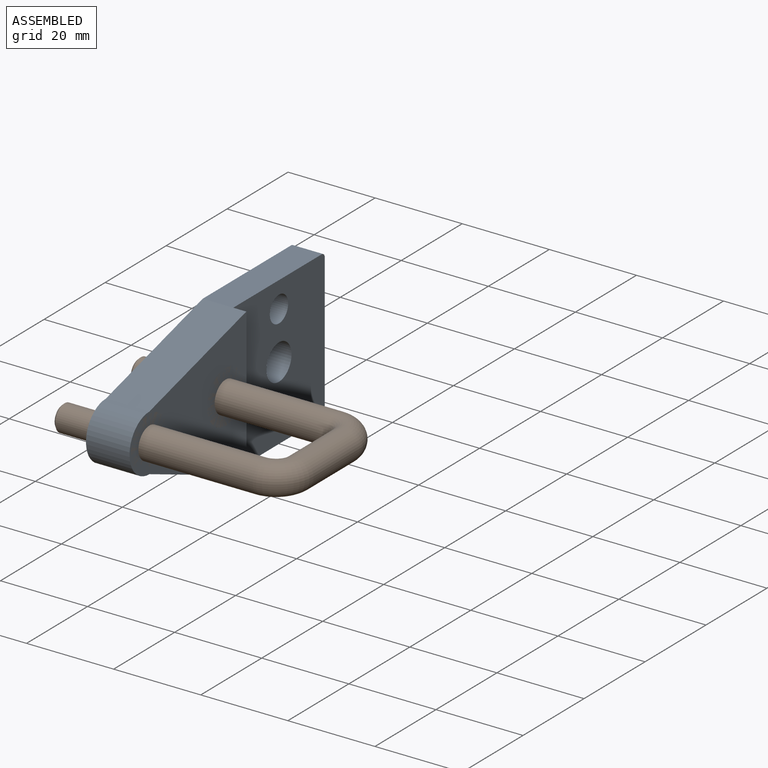
[diagram: assembled view]
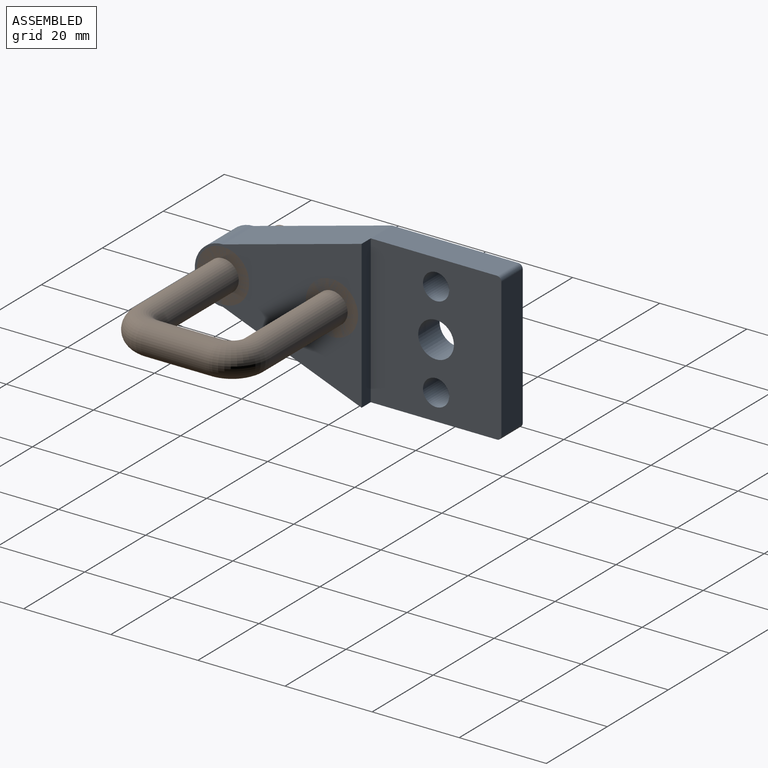
[diagram: assembled view, second angle]
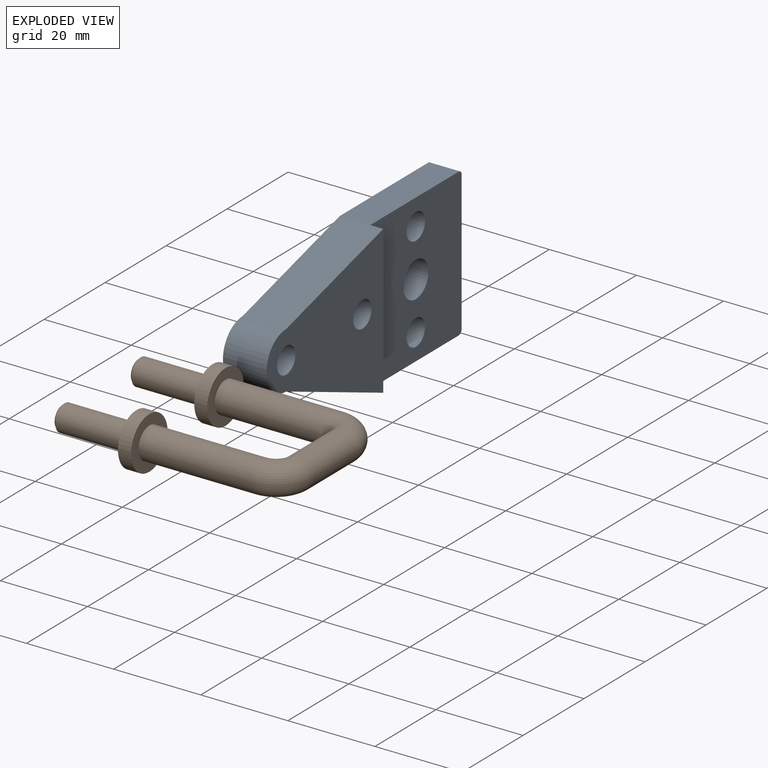
[diagram: exploded view]
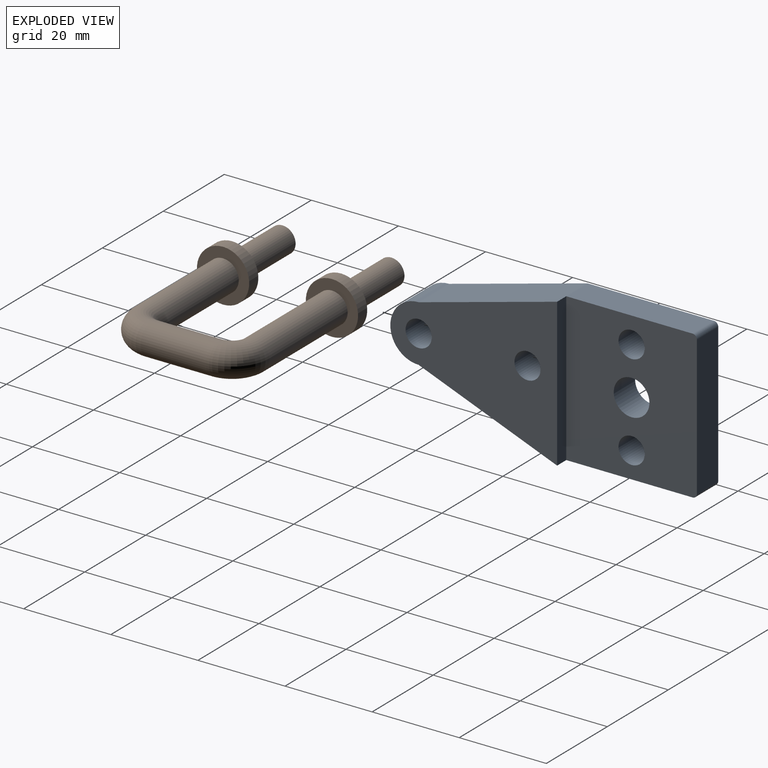
[diagram: exploded view, second angle]
ASSEMBLY  parts=2 mates=2
PART A: 17 faces, bbox 34x68.3x10 mm
  f0: plane 29x7mm, normal (-1,0,0), area 203mm2, adj f1,f10,f11,f12
  f1: cylinder r=1mm len=7mm, axis (0,0,-1), area 11mm2, adj f0,f2,f11,f12
  f2: plane 32x7mm, normal (0,-1,0), area 224mm2, adj f1,f3,f11,f12
  f3: cylinder r=1mm len=7mm, axis (0,0,-1), area 11mm2, adj f2,f4,f11,f12
  f4: plane 29x7mm, normal (1,0,0), area 203mm2, adj f3,f5,f11,f12
  f5: plane 31.8x10mm, normal (0.97,0.26,0), area 329.4mm2, adj f4,f6,f12,f15,f16
  f6: cylinder r=6.5mm len=13mm, axis (0,0,-1), area 204.2mm2, adj f5,f10,f12,f16
  f7: cylinder r=3mm len=7mm, axis (0,0,-1), area 131.9mm2, adj f11,f12
  f8: cylinder r=4.1mm len=8.2mm, axis (0,0,-1), area 180.3mm2, adj f11,f12
  f9: cylinder r=3mm len=7mm, axis (0,0,-1), area 131.9mm2, adj f11,f12
  f10: plane 31.8x12.4mm, normal (-0.93,0.36,0), area 341.3mm2, adj f0,f6,f12,f15,f16
  f11: plane 34x30mm, normal (0,0,1), area 910.2mm2, adj f0,f1,f2,f3,f4,f7,f8,f9
  f12: plane 68.3x34mm, normal (0,0,-1), area 1667.3mm2, adj f0,f1,f2,f3,f4,f5,f6,f7
  f13: cylinder r=3mm len=10mm, axis (0,0,1), area 188.5mm2, adj f12,f16
  f14: cylinder r=3mm len=10mm, axis (0,0,1), area 188.5mm2, adj f12,f16
  f15: plane 34x3mm, normal (0,-1,0), area 102mm2, adj f5,f10,f11,f16
  f16: plane 38.3x34mm, normal (0,0,1), area 757.1mm2, adj f5,f6,f10,f13,f14,f15
PART B: 17 faces, bbox 54.9x37x12 mm
  f0: cylinder r=3.6mm len=25.6mm, axis (-1,0,0), area 579.1mm2, adj f4,f12
  f1: cylinder r=3.6mm len=25.6mm, axis (1,0,0), area 579.1mm2, adj f2,f5
  f2: torus R=5mm, axis (0,0,-1), area 177.7mm2, adj f1,f3
  f3: cylinder r=3.6mm len=15mm, axis (0,-1,0), area 339.3mm2, adj f2,f4
  f4: torus R=5mm, axis (0,0,-1), area 177.7mm2, adj f0,f3
  f5: plane 12x12mm, normal (1,0,0), area 72.4mm2, adj f1,f6
  f6: cylinder r=6mm len=12mm, axis (-1,0,0), area 113.1mm2, adj f5,f10
  f7: plane 5x5mm, normal (-1,0,0), area 19.6mm2, adj f8
  f8: cone r=3mm half-angle=45deg, axis (1,0,0), area 12.2mm2, adj f7,f9
  f9: cylinder r=3mm len=16.5mm, axis (1,0,0), area 311mm2, adj f8,f10
  f10: plane 12x12mm, normal (-1,0,0), area 84.8mm2, adj f6,f9
  f11: cylinder r=6mm len=12mm, axis (-1,0,0), area 113.1mm2, adj f12,f16
  f12: plane 12x12mm, normal (1,0,0), area 72.4mm2, adj f0,f11
  f13: plane 5x5mm, normal (-1,0,0), area 19.6mm2, adj f14
  f14: cone r=3mm half-angle=45deg, axis (1,0,0), area 12.2mm2, adj f13,f15
  f15: cylinder r=3mm len=16.5mm, axis (1,0,0), area 311mm2, adj f14,f16
  f16: plane 12x12mm, normal (-1,0,0), area 84.8mm2, adj f11,f15
PLACE A rot(axis=(0.71,0,0.71),180deg) t=(-17.27,72.47,-0.02)mm
PLACE B t=(-10.27,35.67,18.88)mm
MATE cylindrical A.f6 <-> B.f14  axis (1,0,0) through (-12.27,10.67,18.88)mm
MATE planar A.f8 <-> B.f6  axis (1,0,0) through (-10.27,57.46,16.98)mm
